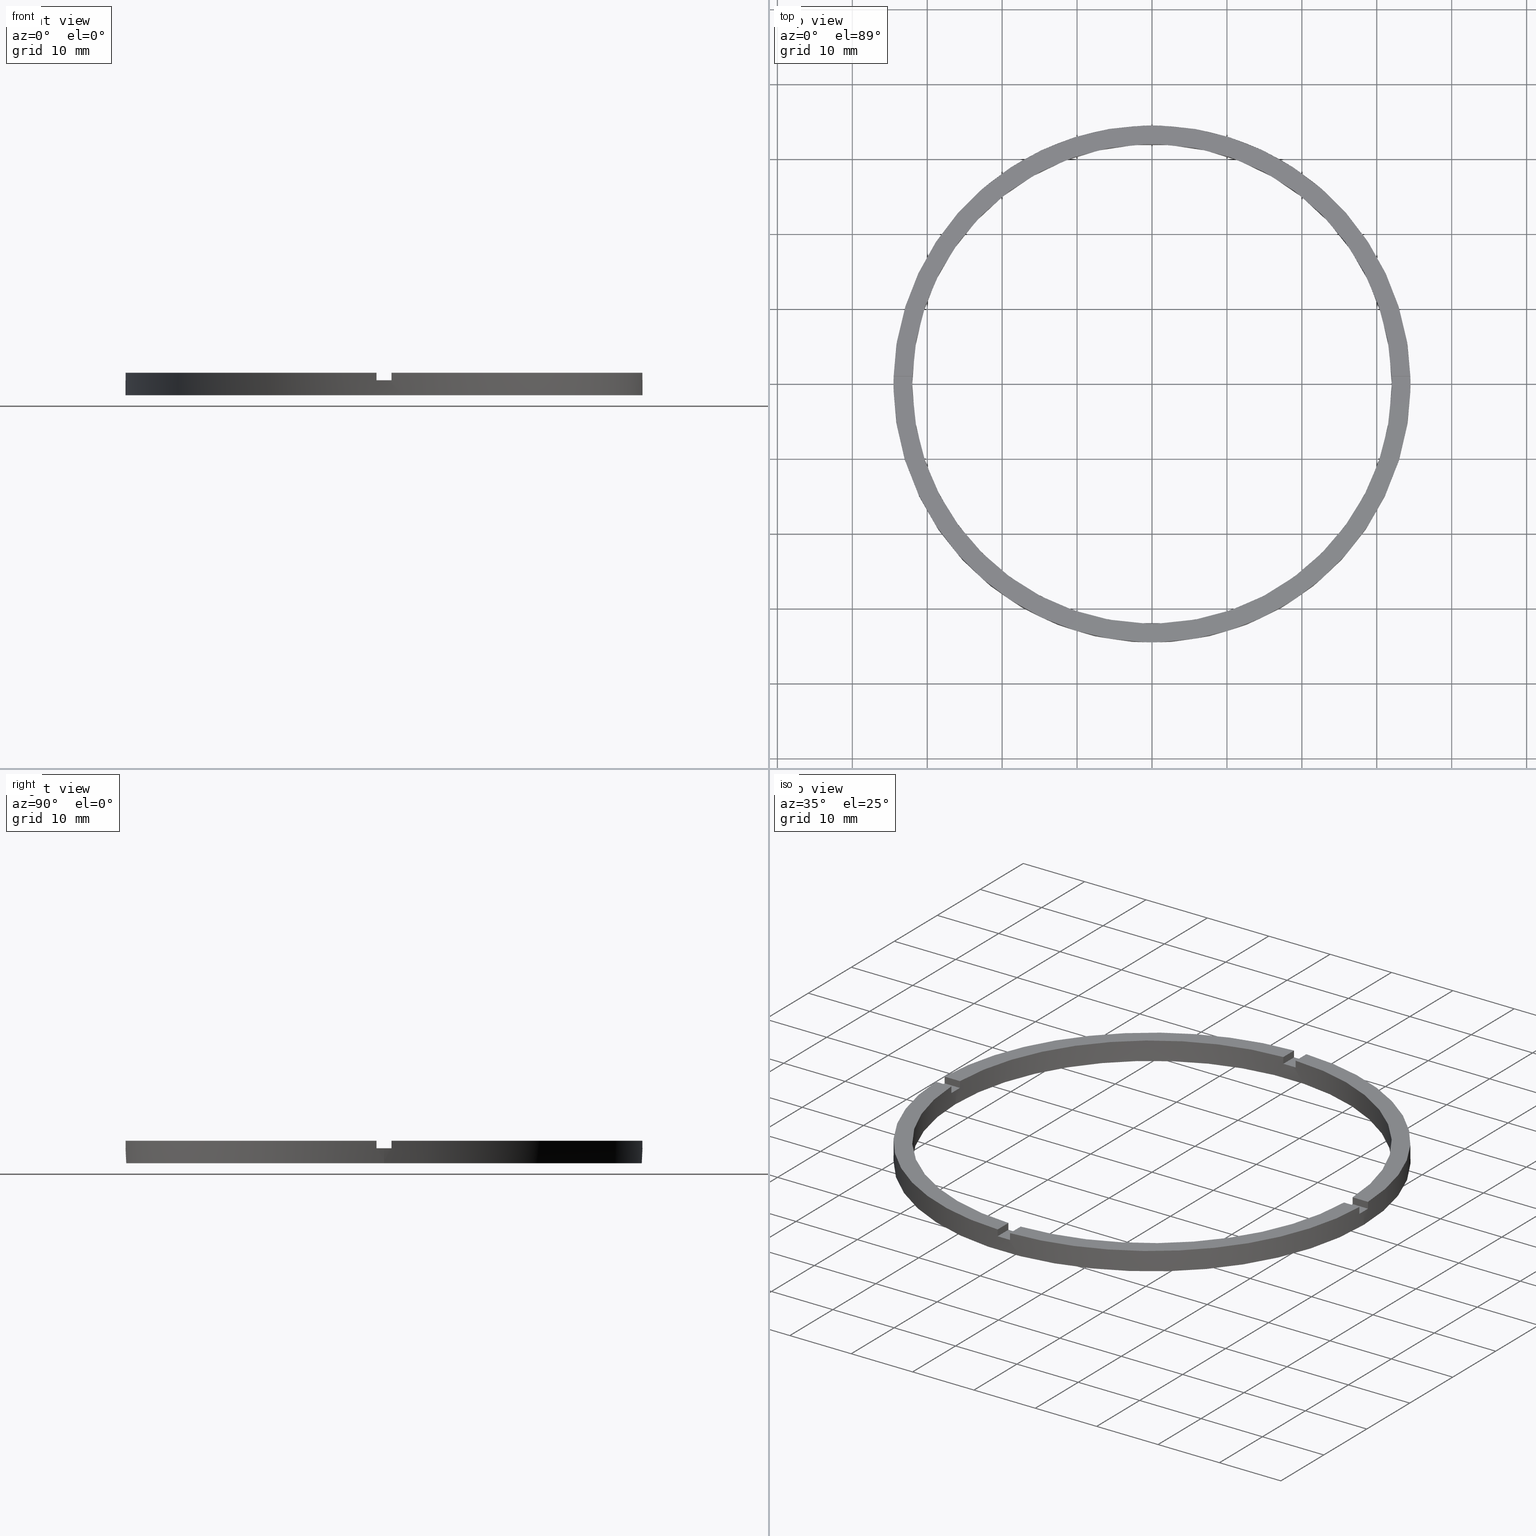
[diagram: canonical four-view strip — front | top / right | iso, engineering-drawing reading convention]
A machine part, canonical four-view strip (front | top / right | iso — engineering-drawing reading convention). The complete STEP part file that produces these views, byte-faithful:
ISO-10303-21;
HEADER;
FILE_DESCRIPTION (( 'STEP AP203' ),
    '1' );
FILE_NAME ('514142.step',
    '2024-12-26T02:41:35',
    ( 'MSI' ),
    ( '' ),
    'SwSTEP 2.0',
    'SolidWorks 2020',
    '' );
FILE_SCHEMA (( 'CONFIG_CONTROL_DESIGN' ));
ENDSEC;

DATA;
#1 = PLANE ( 'NONE',  #121 ) ;
#2 = CIRCLE ( 'NONE', #62, 34.49999999999999289 ) ;
#3 = CARTESIAN_POINT ( 'NONE',  ( 0.9999999999999751310, 31.98437118343894880, 3.000000000000000000 ) ) ;
#4 = LINE ( 'NONE', #3, #23 ) ;
#5 = CARTESIAN_POINT ( 'NONE',  ( -1.000000000000160760, -34.48550420104075442, 3.000000000000000000 ) ) ;
#6 = SECURITY_CLASSIFICATION ( '', '', #309 ) ;
#7 = CARTESIAN_POINT ( 'NONE',  ( 0.9999999999998380185, -24.50000000000017408, 2.000000000000000000 ) ) ;
#8 = VECTOR ( 'NONE', #444, 1000.000000000000000 ) ;
#9 = LINE ( 'NONE', #189, #264 ) ;
#10 = DIRECTION ( 'NONE',  ( 0.000000000000000000, 0.000000000000000000, 1.000000000000000000 ) ) ;
#11 = LINE ( 'NONE', #559, #274 ) ;
#12 = AXIS2_PLACEMENT_3D ( 'NONE', #453, #564, #317 ) ;
#13 = CARTESIAN_POINT ( 'NONE',  ( -1.000000000000160760, -34.48550420104075442, 2.000000000000000000 ) ) ;
#14 = EDGE_CURVE ( 'NONE', #660, #645, #215, .T. ) ;
#15 = FACE_OUTER_BOUND ( 'NONE', #465, .T. ) ;
#16 = EDGE_CURVE ( 'NONE', #63, #632, #490, .T. ) ;
#17 = LINE ( 'NONE', #386, #8 ) ;
#18 = EDGE_CURVE ( 'NONE', #376, #645, #235, .T. ) ;
#19 = DIRECTION ( 'NONE',  ( -0.000000000000000000, -0.000000000000000000, -1.000000000000000000 ) ) ;
#20 = CARTESIAN_POINT ( 'NONE',  ( -24.50000000000018119, -1.000000000000024647, 3.000000000000000000 ) ) ;
#21 = ADVANCED_FACE ( 'NONE', ( #478 ), #81, .T. ) ;
#22 = APPLICATION_PROTOCOL_DEFINITION ( 'international standard', 'config_control_design', 1994, #560 ) ;
#23 = VECTOR ( 'NONE', #371, 1000.000000000000000 ) ;
#24 = FACE_OUTER_BOUND ( 'NONE', #654, .T. ) ;
#25 = CARTESIAN_POINT ( 'NONE',  ( -31.98437118343894880, -1.000000000000026201, 3.000000000000000000 ) ) ;
#26 = LINE ( 'NONE', #729, #410 ) ;
#27 =( LENGTH_UNIT ( ) NAMED_UNIT ( * ) SI_UNIT ( .MILLI., .METRE. ) );
#28 = LINE ( 'NONE', #308, #286 ) ;
#29 = EDGE_CURVE ( 'NONE', #88, #430, #749, .T. ) ;
#30 = LINE ( 'NONE', #536, #32 ) ;
#31 = DIRECTION ( 'NONE',  ( 1.000000000000000000, 0.000000000000000000, 0.000000000000000000 ) ) ;
#32 = VECTOR ( 'NONE', #158, 1000.000000000000000 ) ;
#33 = CARTESIAN_POINT ( 'NONE',  ( -1.000000000000161204, -31.98437118343894170, 3.000000000000000000 ) ) ;
#34 = FACE_OUTER_BOUND ( 'NONE', #328, .T. ) ;
#35 = CIRCLE ( 'NONE', #525, 34.49999999999999289 ) ;
#36 = AXIS2_PLACEMENT_3D ( 'NONE', #295, #360, #118 ) ;
#37 = AXIS2_PLACEMENT_3D ( 'NONE', #439, #374, #245 ) ;
#38 = DIRECTION ( 'NONE',  ( 0.000000000000000000, 0.000000000000000000, 1.000000000000000000 ) ) ;
#39 = DIRECTION ( 'NONE',  ( -1.000000000000000000, -1.951563910473907735E-16, 0.000000000000000000 ) ) ;
#40 = PLANE ( 'NONE',  #205 ) ;
#41 = EDGE_LOOP ( 'NONE', ( #617, #335, #125, #153, #349, #385 ) ) ;
#42 = CARTESIAN_POINT ( 'NONE',  ( -1.000000000000024869, 34.48550420104075442, 3.000000000000000000 ) ) ;
#43 = EDGE_CURVE ( 'NONE', #752, #628, #219, .T. ) ;
#44 = APPROVAL ( #156, 'δָ��' ) ;
#45 = CARTESIAN_POINT ( 'NONE',  ( 0.000000000000000000, 0.000000000000000000, 3.000000000000000000 ) ) ;
#46 = CARTESIAN_POINT ( 'NONE',  ( 0.9999999999999751310, 24.49999999999999289, 2.000000000000000000 ) ) ;
#47 = CARTESIAN_POINT ( 'NONE',  ( 0.000000000000000000, 0.000000000000000000, 3.000000000000000000 ) ) ;
#48 = EDGE_CURVE ( 'NONE', #84, #381, #486, .T. ) ;
#49 = CARTESIAN_POINT ( 'NONE',  ( 24.49999999999998579, -1.000000000000158762, 2.000000000000000000 ) ) ;
#50 = PERSON_AND_ORGANIZATION_ROLE ( 'creator' ) ;
#51 = EDGE_CURVE ( 'NONE', #605, #144, #485, .T. ) ;
#52 = DIRECTION ( 'NONE',  ( -1.000000000000000000, -1.301042606982605074E-16, 0.000000000000000000 ) ) ;
#53 = CARTESIAN_POINT ( 'NONE',  ( -1.000000000000024869, 24.49999999999999289, 3.000000000000000000 ) ) ;
#54 = CARTESIAN_POINT ( 'NONE',  ( 0.000000000000000000, 0.000000000000000000, 2.000000000000000000 ) ) ;
#55 = ORIENTED_EDGE ( 'NONE', *, *, #714, .T. ) ;
#56 = DIRECTION ( 'NONE',  ( 0.000000000000000000, 0.000000000000000000, 1.000000000000000000 ) ) ;
#57 = ORIENTED_EDGE ( 'NONE', *, *, #330, .F. ) ;
#58 = CARTESIAN_POINT ( 'NONE',  ( 0.9999999999999751310, 31.98437118343894880, 3.000000000000000000 ) ) ;
#59 = EDGE_LOOP ( 'NONE', ( #615, #662, #576, #598, #592, #432, #411, #344, #357, #625, #636, #577 ) ) ;
#60 = AXIS2_PLACEMENT_3D ( 'NONE', #764, #570, #222 ) ;
#61 = DIRECTION ( 'NONE',  ( 1.000000000000000000, 0.000000000000000000, 0.000000000000000000 ) ) ;
#62 = AXIS2_PLACEMENT_3D ( 'NONE', #136, #437, #542 ) ;
#63 = VERTEX_POINT ( 'NONE', #243 ) ;
#64 = VERTEX_POINT ( 'NONE', #678 ) ;
#65 = EDGE_CURVE ( 'NONE', #473, #645, #475, .T. ) ;
#66 = EDGE_LOOP ( 'NONE', ( #93, #123, #355, #220, #484, #574, #760, #635, #626, #238, #467, #142 ) ) ;
#67 = PLANE ( 'NONE',  #352 ) ;
#68 = ORIENTED_EDGE ( 'NONE', *, *, #709, .T. ) ;
#69 = VERTEX_POINT ( 'NONE', #479 ) ;
#70 = ORIENTED_EDGE ( 'NONE', *, *, #291, .F. ) ;
#71 = ORIENTED_EDGE ( 'NONE', *, *, #307, .T. ) ;
#72 = DIRECTION ( 'NONE',  ( -0.000000000000000000, -0.000000000000000000, -1.000000000000000000 ) ) ;
#73 = VERTEX_POINT ( 'NONE', #717 ) ;
#74 = AXIS2_PLACEMENT_3D ( 'NONE', #555, #165, #239 ) ;
#75 = CARTESIAN_POINT ( 'NONE',  ( -1.000000000000024869, 34.48550420104075442, 2.000000000000000000 ) ) ;
#76 = MECHANICAL_CONTEXT ( 'NONE', #560, 'mechanical' ) ;
#77 = ORIENTED_EDGE ( 'NONE', *, *, #83, .T. ) ;
#78 = PERSON_AND_ORGANIZATION ( #111, #686 ) ;
#79 = EDGE_CURVE ( 'NONE', #331, #628, #209, .T. ) ;
#80 = ORIENTED_EDGE ( 'NONE', *, *, #79, .F. ) ;
#81 = PLANE ( 'NONE',  #452 ) ;
#82 = ADVANCED_FACE ( 'NONE', ( #493 ), #498, .F. ) ;
#83 = EDGE_CURVE ( 'NONE', #652, #756, #214, .T. ) ;
#84 = VERTEX_POINT ( 'NONE', #426 ) ;
#85 = PRODUCT ( '514142', '514142', '', ( #76 ) ) ;
#86 = PLANE ( 'NONE',  #684 ) ;
#87 = CALENDAR_DATE ( 2024, 26, 12 ) ;
#88 = VERTEX_POINT ( 'NONE', #522 ) ;
#89 = DIRECTION ( 'NONE',  ( 1.000000000000000000, 0.000000000000000000, -0.000000000000000000 ) ) ;
#90 = VERTEX_POINT ( 'NONE', #278 ) ;
#91 = ORIENTED_EDGE ( 'NONE', *, *, #563, .T. ) ;
#92 = APPROVAL_DATE_TIME ( #608, #459 ) ;
#93 = ORIENTED_EDGE ( 'NONE', *, *, #715, .T. ) ;
#94 = CARTESIAN_POINT ( 'NONE',  ( 0.000000000000000000, 0.000000000000000000, 3.000000000000000000 ) ) ;
#95 = DATE_AND_TIME ( #112, #109 ) ;
#96 = ORIENTED_EDGE ( 'NONE', *, *, #445, .F. ) ;
#97 = DATE_AND_TIME ( #87, #604 ) ;
#98 = EDGE_LOOP ( 'NONE', ( #738, #324, #113, #234 ) ) ;
#99 = PERSON_AND_ORGANIZATION ( #111, #686 ) ;
#100 = ORIENTED_EDGE ( 'NONE', *, *, #419, .F. ) ;
#101 = DIRECTION ( 'NONE',  ( 0.000000000000000000, 0.000000000000000000, 1.000000000000000000 ) ) ;
#102 = EDGE_LOOP ( 'NONE', ( #304, #673, #70, #572 ) ) ;
#103 = DATE_AND_TIME ( #353, #616 ) ;
#104 = MANIFOLD_SOLID_BREP ( '�г�-����1', #413 ) ;
#105 = ORIENTED_EDGE ( 'NONE', *, *, #666, .T. ) ;
#106 = PERSON_AND_ORGANIZATION ( #111, #686 ) ;
#107 = ORIENTED_EDGE ( 'NONE', *, *, #132, .T. ) ;
#108 = ORIENTED_EDGE ( 'NONE', *, *, #330, .T. ) ;
#109 = LOCAL_TIME ( 10, 41, 35.00000000000000000, #622 ) ;
#110 = DIRECTION ( 'NONE',  ( 0.000000000000000000, 0.000000000000000000, 1.000000000000000000 ) ) ;
#111 = PERSON ( 'δָ��', 'δָ��', 'δָ��', ('δָ��'), ('δָ��'), ('δָ��') ) ;
#112 = CALENDAR_DATE ( 2024, 26, 12 ) ;
#113 = ORIENTED_EDGE ( 'NONE', *, *, #132, .F. ) ;
#114 = VERTEX_POINT ( 'NONE', #457 ) ;
#115 = ORIENTED_EDGE ( 'NONE', *, *, #406, .T. ) ;
#116 = VERTEX_POINT ( 'NONE', #216 ) ;
#117 = DIRECTION ( 'NONE',  ( -1.301042606982605074E-16, 1.000000000000000000, -0.000000000000000000 ) ) ;
#118 = DIRECTION ( 'NONE',  ( -1.000000000000000000, -1.951563910473907735E-16, 0.000000000000000000 ) ) ;
#119 = APPROVAL_DATE_TIME ( #610, #568 ) ;
#120 = ORIENTED_EDGE ( 'NONE', *, *, #578, .F. ) ;
#121 = AXIS2_PLACEMENT_3D ( 'NONE', #149, #687, #483 ) ;
#122 = AXIS2_PLACEMENT_3D ( 'NONE', #690, #442, #154 ) ;
#123 = ORIENTED_EDGE ( 'NONE', *, *, #553, .T. ) ;
#124 = VERTEX_POINT ( 'NONE', #573 ) ;
#125 = ORIENTED_EDGE ( 'NONE', *, *, #466, .T. ) ;
#126 = ORIENTED_EDGE ( 'NONE', *, *, #513, .F. ) ;
#127 = EDGE_LOOP ( 'NONE', ( #182, #587, #208, #392 ) ) ;
#128 = CARTESIAN_POINT ( 'NONE',  ( 0.000000000000000000, 0.000000000000000000, 0.000000000000000000 ) ) ;
#129 = DIRECTION ( 'NONE',  ( 1.000000000000000000, 0.000000000000000000, 0.000000000000000000 ) ) ;
#130 = PERSON_AND_ORGANIZATION_ROLE ( 'design_supplier' ) ;
#131 = CARTESIAN_POINT ( 'NONE',  ( 34.49999999999999289, 4.225031457058367344E-15, 3.000000000000000000 ) ) ;
#132 = EDGE_CURVE ( 'NONE', #161, #473, #751, .T. ) ;
#133 = AXIS2_PLACEMENT_3D ( 'NONE', #631, #329, #373 ) ;
#134 = DIRECTION ( 'NONE',  ( 0.000000000000000000, 0.000000000000000000, 1.000000000000000000 ) ) ;
#135 = APPROVAL_ROLE ( '' ) ;
#136 = CARTESIAN_POINT ( 'NONE',  ( 0.000000000000000000, 0.000000000000000000, 2.000000000000000000 ) ) ;
#137 = CIRCLE ( 'NONE', #758, 32.00000000000000000 ) ;
#138 = CARTESIAN_POINT ( 'NONE',  ( -1.000000000000024869, 34.48550420104075442, 3.000000000000000000 ) ) ;
#139 = EDGE_LOOP ( 'NONE', ( #720, #580, #68, #474, #126, #463, #120, #346, #743, #727, #482, #342 ) ) ;
#140 = DIRECTION ( 'NONE',  ( 0.000000000000000000, -0.000000000000000000, 1.000000000000000000 ) ) ;
#141 = DIRECTION ( 'NONE',  ( -0.000000000000000000, -0.000000000000000000, -1.000000000000000000 ) ) ;
#142 = ORIENTED_EDGE ( 'NONE', *, *, #321, .F. ) ;
#143 = CARTESIAN_POINT ( 'NONE',  ( 0.000000000000000000, 0.000000000000000000, 2.000000000000000000 ) ) ;
#144 = VERTEX_POINT ( 'NONE', #519 ) ;
#145 = CYLINDRICAL_SURFACE ( 'NONE', #643, 34.49999999999999289 ) ;
#146 = DIRECTION ( 'NONE',  ( -0.000000000000000000, -0.000000000000000000, -1.000000000000000000 ) ) ;
#147 = CIRCLE ( 'NONE', #74, 32.00000000000000000 ) ;
#148 = EDGE_CURVE ( 'NONE', #377, #114, #224, .T. ) ;
#149 = CARTESIAN_POINT ( 'NONE',  ( 0.000000000000000000, 0.000000000000000000, 2.000000000000000000 ) ) ;
#150 = PERSON_AND_ORGANIZATION_ROLE ( 'classification_officer' ) ;
#151 = ORIENTED_EDGE ( 'NONE', *, *, #298, .T. ) ;
#152 = ORIENTED_EDGE ( 'NONE', *, *, #79, .T. ) ;
#153 = ORIENTED_EDGE ( 'NONE', *, *, #318, .F. ) ;
#154 = DIRECTION ( 'NONE',  ( 1.000000000000000000, 0.000000000000000000, 0.000000000000000000 ) ) ;
#155 = ORIENTED_EDGE ( 'NONE', *, *, #620, .F. ) ;
#156 = APPROVAL_STATUS ( 'not_yet_approved' ) ;
#157 = ORIENTED_EDGE ( 'NONE', *, *, #14, .F. ) ;
#158 = DIRECTION ( 'NONE',  ( 0.000000000000000000, 0.000000000000000000, 1.000000000000000000 ) ) ;
#159 = CIRCLE ( 'NONE', #12, 34.49999999999999289 ) ;
#160 = ADVANCED_FACE ( 'NONE', ( #230 ), #40, .T. ) ;
#161 = VERTEX_POINT ( 'NONE', #772 ) ;
#162 = CARTESIAN_POINT ( 'NONE',  ( -1.000000000000162093, -24.50000000000017408, 2.000000000000000000 ) ) ;
#163 =( NAMED_UNIT ( * ) PLANE_ANGLE_UNIT ( ) SI_UNIT ( $, .RADIAN. ) );
#164 = VECTOR ( 'NONE', #716, 1000.000000000000000 ) ;
#165 = DIRECTION ( 'NONE',  ( 0.000000000000000000, 0.000000000000000000, 1.000000000000000000 ) ) ;
#166 = ADVANCED_FACE ( 'NONE', ( #228 ), #658, .F. ) ;
#167 = EDGE_LOOP ( 'NONE', ( #682, #422, #600, #557 ) ) ;
#168 = CC_DESIGN_APPROVAL ( #459, ( #6 ) ) ;
#169 = EDGE_CURVE ( 'NONE', #381, #84, #487, .T. ) ;
#170 = CARTESIAN_POINT ( 'NONE',  ( 0.000000000000000000, 0.000000000000000000, 3.000000000000000000 ) ) ;
#171 = DIRECTION ( 'NONE',  ( -0.000000000000000000, 0.000000000000000000, 1.000000000000000000 ) ) ;
#172 = PERSON_AND_ORGANIZATION ( #111, #686 ) ;
#173 = EDGE_LOOP ( 'NONE', ( #337, #650, #436, #420 ) ) ;
#174 = ORIENTED_EDGE ( 'NONE', *, *, #29, .T. ) ;
#175 = ORIENTED_EDGE ( 'NONE', *, *, #261, .T. ) ;
#176 = DIRECTION ( 'NONE',  ( 1.000000000000000000, 0.000000000000000000, 0.000000000000000000 ) ) ;
#177 = CARTESIAN_POINT ( 'NONE',  ( 0.000000000000000000, 0.000000000000000000, 2.000000000000000000 ) ) ;
#178 = AXIS2_PLACEMENT_3D ( 'NONE', #323, #202, #263 ) ;
#179 = DIRECTION ( 'NONE',  ( 0.000000000000000000, 1.000000000000000000, 0.000000000000000000 ) ) ;
#180 = EDGE_CURVE ( 'NONE', #732, #752, #218, .T. ) ;
#181 = AXIS2_PLACEMENT_3D ( 'NONE', #646, #267, #637 ) ;
#182 = ORIENTED_EDGE ( 'NONE', *, *, #719, .T. ) ;
#183 = DIRECTION ( 'NONE',  ( -0.000000000000000000, -0.000000000000000000, -1.000000000000000000 ) ) ;
#184 = AXIS2_PLACEMENT_3D ( 'NONE', #470, #297, #575 ) ;
#185 = DIRECTION ( 'NONE',  ( 1.000000000000000000, 0.000000000000000000, -0.000000000000000000 ) ) ;
#186 = PLANE ( 'NONE',  #248 ) ;
#187 = APPROVAL_STATUS ( 'not_yet_approved' ) ;
#188 = CARTESIAN_POINT ( 'NONE',  ( 34.48550420104075442, -1.000000000000158096, 2.000000000000000000 ) ) ;
#189 = CARTESIAN_POINT ( 'NONE',  ( -34.48550420104075442, -1.000000000000026645, 3.000000000000000000 ) ) ;
#190 = CC_DESIGN_APPROVAL ( #44, ( #408 ) ) ;
#191 = EDGE_CURVE ( 'NONE', #116, #380, #730, .T. ) ;
#192 = ADVANCED_BREP_SHAPE_REPRESENTATION ( '514142', ( #104, #194 ), #327 ) ;
#193 = CARTESIAN_POINT ( 'NONE',  ( 0.000000000000000000, 0.000000000000000000, 3.000000000000000000 ) ) ;
#194 = AXIS2_PLACEMENT_3D ( 'NONE', #266, #692, #449 ) ;
#195 = DIRECTION ( 'NONE',  ( -1.301042606982605074E-16, 1.000000000000000000, 0.000000000000000000 ) ) ;
#196 = AXIS2_PLACEMENT_3D ( 'NONE', #704, #316, #599 ) ;
#197 = DIRECTION ( 'NONE',  ( 0.000000000000000000, 0.000000000000000000, 1.000000000000000000 ) ) ;
#198 = EDGE_CURVE ( 'NONE', #73, #116, #237, .T. ) ;
#199 = CARTESIAN_POINT ( 'NONE',  ( 0.000000000000000000, 0.000000000000000000, 3.000000000000000000 ) ) ;
#200 = APPLICATION_PROTOCOL_DEFINITION ( 'international standard', 'config_control_design', 1994, #742 ) ;
#201 = ADVANCED_FACE ( 'NONE', ( #460 ), #292, .F. ) ;
#202 = DIRECTION ( 'NONE',  ( -1.000000000000000000, 0.000000000000000000, 0.000000000000000000 ) ) ;
#203 = ADVANCED_FACE ( 'NONE', ( #724 ), #712, .T. ) ;
#204 = PLANE ( 'NONE',  #178 ) ;
#205 = AXIS2_PLACEMENT_3D ( 'NONE', #431, #110, #185 ) ;
#206 = VECTOR ( 'NONE', #418, 1000.000000000000000 ) ;
#207 = AXIS2_PLACEMENT_3D ( 'NONE', #679, #499, #249 ) ;
#208 = ORIENTED_EDGE ( 'NONE', *, *, #191, .F. ) ;
#209 = LINE ( 'NONE', #5, #757 ) ;
#210 = CARTESIAN_POINT ( 'NONE',  ( 0.9999999999998380185, -24.50000000000017408, 2.000000000000000000 ) ) ;
#211 = CARTESIAN_POINT ( 'NONE',  ( 0.000000000000000000, 0.000000000000000000, 2.000000000000000000 ) ) ;
#212 = CIRCLE ( 'NONE', #584, 34.49999999999999289 ) ;
#213 = VECTOR ( 'NONE', #117, 1000.000000000000000 ) ;
#214 = CIRCLE ( 'NONE', #707, 34.49999999999999289 ) ;
#215 = CIRCLE ( 'NONE', #181, 32.00000000000000000 ) ;
#216 = CARTESIAN_POINT ( 'NONE',  ( 34.48550420104076153, 0.9999999999998419042, 2.000000000000000000 ) ) ;
#217 = CARTESIAN_POINT ( 'NONE',  ( -31.98437118343894880, -1.000000000000026201, 2.000000000000000000 ) ) ;
#218 = CIRCLE ( 'NONE', #351, 32.00000000000000000 ) ;
#219 = LINE ( 'NONE', #402, #226 ) ;
#220 = ORIENTED_EDGE ( 'NONE', *, *, #569, .F. ) ;
#221 = VECTOR ( 'NONE', #759, 1000.000000000000000 ) ;
#222 = DIRECTION ( 'NONE',  ( 1.000000000000000000, 0.000000000000000000, 0.000000000000000000 ) ) ;
#223 = DIRECTION ( 'NONE',  ( 0.000000000000000000, 0.000000000000000000, 1.000000000000000000 ) ) ;
#224 = CIRCLE ( 'NONE', #60, 34.49999999999999289 ) ;
#225 = VERTEX_POINT ( 'NONE', #217 ) ;
#226 = VECTOR ( 'NONE', #701, 1000.000000000000000 ) ;
#227 = DIRECTION ( 'NONE',  ( -1.000000000000000000, -6.505213034913025371E-17, -0.000000000000000000 ) ) ;
#228 = FACE_OUTER_BOUND ( 'NONE', #613, .T. ) ;
#229 = CARTESIAN_POINT ( 'NONE',  ( 0.9999999999998389066, -31.98437118343895591, 3.000000000000000000 ) ) ;
#230 = FACE_OUTER_BOUND ( 'NONE', #389, .T. ) ;
#231 = EDGE_CURVE ( 'NONE', #594, #628, #212, .T. ) ;
#232 = VECTOR ( 'NONE', #227, 1000.000000000000000 ) ;
#233 = EDGE_CURVE ( 'NONE', #590, #407, #725, .T. ) ;
#234 = ORIENTED_EDGE ( 'NONE', *, *, #768, .T. ) ;
#235 = LINE ( 'NONE', #210, #221 ) ;
#236 = CARTESIAN_POINT ( 'NONE',  ( 0.9999999999998393507, -34.48550420104076153, 2.000000000000000000 ) ) ;
#237 = LINE ( 'NONE', #705, #206 ) ;
#238 = ORIENTED_EDGE ( 'NONE', *, *, #65, .F. ) ;
#239 = DIRECTION ( 'NONE',  ( 1.000000000000000000, 0.000000000000000000, 0.000000000000000000 ) ) ;
#240 = CYLINDRICAL_SURFACE ( 'NONE', #744, 32.00000000000000000 ) ;
#241 = CARTESIAN_POINT ( 'NONE',  ( 0.000000000000000000, 0.000000000000000000, 2.000000000000000000 ) ) ;
#242 = LINE ( 'NONE', #285, #503 ) ;
#243 = CARTESIAN_POINT ( 'NONE',  ( 31.98437118343895591, 0.9999999999998419042, 3.000000000000000000 ) ) ;
#244 = VECTOR ( 'NONE', #663, 1000.000000000000000 ) ;
#245 = DIRECTION ( 'NONE',  ( 1.000000000000000000, 0.000000000000000000, 0.000000000000000000 ) ) ;
#246 = CARTESIAN_POINT ( 'NONE',  ( 31.98437118343894170, -1.000000000000158096, 3.000000000000000000 ) ) ;
#247 = DIRECTION ( 'NONE',  ( 1.000000000000000000, 0.000000000000000000, 0.000000000000000000 ) ) ;
#248 = AXIS2_PLACEMENT_3D ( 'NONE', #265, #397, #451 ) ;
#249 = DIRECTION ( 'NONE',  ( -1.000000000000000000, 0.000000000000000000, 0.000000000000000000 ) ) ;
#250 = EDGE_CURVE ( 'NONE', #607, #407, #736, .T. ) ;
#251 = CARTESIAN_POINT ( 'NONE',  ( -31.98437118343894880, 0.9999999999999737987, 3.000000000000000000 ) ) ;
#252 = VECTOR ( 'NONE', #529, 1000.000000000000000 ) ;
#253 = VECTOR ( 'NONE', #294, 1000.000000000000000 ) ;
#254 = CARTESIAN_POINT ( 'NONE',  ( 24.49999999999998579, -1.000000000000158762, 3.000000000000000000 ) ) ;
#255 = FACE_OUTER_BOUND ( 'NONE', #398, .T. ) ;
#256 = CIRCLE ( 'NONE', #726, 32.00000000000000000 ) ;
#257 = VECTOR ( 'NONE', #696, 1000.000000000000000 ) ;
#258 = CARTESIAN_POINT ( 'NONE',  ( -34.48550420104076153, 0.9999999999999733546, 3.000000000000000000 ) ) ;
#259 = EDGE_CURVE ( 'NONE', #333, #64, #242, .T. ) ;
#260 = APPROVAL_STATUS ( 'not_yet_approved' ) ;
#261 = EDGE_CURVE ( 'NONE', #377, #88, #766, .T. ) ;
#262 = LINE ( 'NONE', #364, #520 ) ;
#263 = DIRECTION ( 'NONE',  ( 0.000000000000000000, 0.000000000000000000, 1.000000000000000000 ) ) ;
#264 = VECTOR ( 'NONE', #141, 1000.000000000000000 ) ;
#265 = CARTESIAN_POINT ( 'NONE',  ( 0.000000000000000000, 0.000000000000000000, 3.000000000000000000 ) ) ;
#266 = CARTESIAN_POINT ( 'NONE',  ( 0.000000000000000000, 0.000000000000000000, 0.000000000000000000 ) ) ;
#267 = DIRECTION ( 'NONE',  ( -0.000000000000000000, 0.000000000000000000, 1.000000000000000000 ) ) ;
#268 = DIRECTION ( 'NONE',  ( 0.000000000000000000, 0.000000000000000000, 1.000000000000000000 ) ) ;
#269 = VECTOR ( 'NONE', #773, 1000.000000000000000 ) ;
#270 = LINE ( 'NONE', #49, #780 ) ;
#271 = ADVANCED_FACE ( 'NONE', ( #496 ), #240, .F. ) ;
#272 = DESIGN_CONTEXT ( 'detailed design', #742, 'design' ) ;
#273 = FACE_OUTER_BOUND ( 'NONE', #167, .T. ) ;
#274 = VECTOR ( 'NONE', #629, 1000.000000000000000 ) ;
#275 = DIRECTION ( 'NONE',  ( 1.000000000000000000, 0.000000000000000000, 0.000000000000000000 ) ) ;
#276 = AXIS2_PLACEMENT_3D ( 'NONE', #211, #765, #279 ) ;
#277 = VECTOR ( 'NONE', #390, 1000.000000000000000 ) ;
#278 = CARTESIAN_POINT ( 'NONE',  ( -1.000000000000024869, 31.98437118343894880, 3.000000000000000000 ) ) ;
#279 = DIRECTION ( 'NONE',  ( 1.000000000000000000, 0.000000000000000000, 0.000000000000000000 ) ) ;
#280 = CYLINDRICAL_SURFACE ( 'NONE', #207, 34.49999999999999289 ) ;
#281 = FACE_OUTER_BOUND ( 'NONE', #139, .T. ) ;
#282 = LINE ( 'NONE', #254, #543 ) ;
#283 = LINE ( 'NONE', #566, #547 ) ;
#284 = DIRECTION ( 'NONE',  ( 0.000000000000000000, 0.000000000000000000, 1.000000000000000000 ) ) ;
#285 = CARTESIAN_POINT ( 'NONE',  ( -24.50000000000018119, 0.9999999999999753530, 3.000000000000000000 ) ) ;
#286 = VECTOR ( 'NONE', #146, 1000.000000000000000 ) ;
#287 = CIRCLE ( 'NONE', #122, 34.49999999999999289 ) ;
#288 = VECTOR ( 'NONE', #10, 1000.000000000000000 ) ;
#289 = CC_DESIGN_SECURITY_CLASSIFICATION ( #6, ( #408 ) ) ;
#290 = LINE ( 'NONE', #25, #551 ) ;
#291 = EDGE_CURVE ( 'NONE', #747, #477, #761, .T. ) ;
#292 = PLANE ( 'NONE',  #36 ) ;
#293 = LINE ( 'NONE', #325, #552 ) ;
#294 = DIRECTION ( 'NONE',  ( -0.000000000000000000, -0.000000000000000000, -1.000000000000000000 ) ) ;
#295 = CARTESIAN_POINT ( 'NONE',  ( -24.50000000000018119, 0.9999999999999753530, 2.000000000000000000 ) ) ;
#296 = AXIS2_PLACEMENT_3D ( 'NONE', #94, #508, #748 ) ;
#297 = DIRECTION ( 'NONE',  ( 0.000000000000000000, 0.000000000000000000, 1.000000000000000000 ) ) ;
#298 = EDGE_CURVE ( 'NONE', #607, #90, #497, .T. ) ;
#299 = AXIS2_PLACEMENT_3D ( 'NONE', #561, #746, #31 ) ;
#300 = ORIENTED_EDGE ( 'NONE', *, *, #372, .T. ) ;
#301 = CARTESIAN_POINT ( 'NONE',  ( -34.48550420104075442, -1.000000000000026645, 3.000000000000000000 ) ) ;
#302 = EDGE_LOOP ( 'NONE', ( #462, #401 ) ) ;
#303 = CARTESIAN_POINT ( 'NONE',  ( 0.9999999999998389066, -31.98437118343895591, 3.000000000000000000 ) ) ;
#304 = ORIENTED_EDGE ( 'NONE', *, *, #233, .T. ) ;
#305 = DIRECTION ( 'NONE',  ( 1.000000000000000000, 1.301042606982605074E-16, 0.000000000000000000 ) ) ;
#306 = DIRECTION ( 'NONE',  ( 1.000000000000000000, 6.505213034913025371E-17, 0.000000000000000000 ) ) ;
#307 = EDGE_CURVE ( 'NONE', #605, #333, #531, .T. ) ;
#308 = CARTESIAN_POINT ( 'NONE',  ( -32.00000000000000000, 0.000000000000000000, 3.000000000000000000 ) ) ;
#309 = SECURITY_CLASSIFICATION_LEVEL ( 'unclassified' ) ;
#310 = AXIS2_PLACEMENT_3D ( 'NONE', #46, #775, #700 ) ;
#311 = DIRECTION ( 'NONE',  ( -0.000000000000000000, -0.000000000000000000, -1.000000000000000000 ) ) ;
#312 = CARTESIAN_POINT ( 'NONE',  ( 0.000000000000000000, 0.000000000000000000, 2.000000000000000000 ) ) ;
#313 = DIRECTION ( 'NONE',  ( 1.000000000000000000, 6.505213034913025371E-17, 0.000000000000000000 ) ) ;
#314 = ADVANCED_FACE ( 'NONE', ( #524 ), #1, .T. ) ;
#315 = CARTESIAN_POINT ( 'NONE',  ( 0.000000000000000000, 0.000000000000000000, 2.000000000000000000 ) ) ;
#316 = DIRECTION ( 'NONE',  ( 0.000000000000000000, 0.000000000000000000, 1.000000000000000000 ) ) ;
#317 = DIRECTION ( 'NONE',  ( 1.000000000000000000, 0.000000000000000000, 0.000000000000000000 ) ) ;
#318 = EDGE_CURVE ( 'NONE', #722, #225, #256, .T. ) ;
#319 = CC_DESIGN_PERSON_AND_ORGANIZATION_ASSIGNMENT ( #78, #130, ( #408 ) ) ;
#320 = EDGE_LOOP ( 'NONE', ( #603, #653, #157, #665 ) ) ;
#321 = EDGE_CURVE ( 'NONE', #124, #338, #511, .T. ) ;
#322 = ORIENTED_EDGE ( 'NONE', *, *, #481, .F. ) ;
#323 = CARTESIAN_POINT ( 'NONE',  ( -1.000000000000024869, 24.49999999999999289, 2.000000000000000000 ) ) ;
#324 = ORIENTED_EDGE ( 'NONE', *, *, #468, .F. ) ;
#325 = CARTESIAN_POINT ( 'NONE',  ( 0.9999999999999751310, 24.49999999999999289, 3.000000000000000000 ) ) ;
#326 = ORIENTED_EDGE ( 'NONE', *, *, #259, .F. ) ;
#327 =( GEOMETRIC_REPRESENTATION_CONTEXT ( 3 ) GLOBAL_UNCERTAINTY_ASSIGNED_CONTEXT ( ( #530 ) ) GLOBAL_UNIT_ASSIGNED_CONTEXT ( ( #27, #163, #733 ) ) REPRESENTATION_CONTEXT ( 'NONE', 'WORKASPACE' ) );
#328 = EDGE_LOOP ( 'NONE', ( #414, #649, #409, #80 ) ) ;
#329 = DIRECTION ( 'NONE',  ( 0.000000000000000000, 0.000000000000000000, 1.000000000000000000 ) ) ;
#330 = EDGE_CURVE ( 'NONE', #594, #114, #9, .T. ) ;
#331 = VERTEX_POINT ( 'NONE', #13 ) ;
#332 = EDGE_LOOP ( 'NONE', ( #655, #425 ) ) ;
#333 = VERTEX_POINT ( 'NONE', #476 ) ;
#334 = CARTESIAN_POINT ( 'NONE',  ( 0.9999999999998380185, -24.50000000000017408, 3.000000000000000000 ) ) ;
#335 = ORIENTED_EDGE ( 'NONE', *, *, #148, .T. ) ;
#336 = LOCAL_TIME ( 10, 41, 35.00000000000000000, #348 ) ;
#337 = ORIENTED_EDGE ( 'NONE', *, *, #372, .F. ) ;
#338 = VERTEX_POINT ( 'NONE', #246 ) ;
#339 = ORIENTED_EDGE ( 'NONE', *, *, #657, .T. ) ;
#340 = DIRECTION ( 'NONE',  ( 1.000000000000000000, 6.505213034913025371E-17, 0.000000000000000000 ) ) ;
#341 = CARTESIAN_POINT ( 'NONE',  ( 0.000000000000000000, 0.000000000000000000, 3.000000000000000000 ) ) ;
#342 = ORIENTED_EDGE ( 'NONE', *, *, #198, .T. ) ;
#343 = ORIENTED_EDGE ( 'NONE', *, *, #715, .F. ) ;
#344 = ORIENTED_EDGE ( 'NONE', *, *, #762, .T. ) ;
#345 = SHAPE_DEFINITION_REPRESENTATION ( #567, #192 ) ;
#346 = ORIENTED_EDGE ( 'NONE', *, *, #250, .T. ) ;
#347 = DIRECTION ( 'NONE',  ( 1.000000000000000000, 0.000000000000000000, 0.000000000000000000 ) ) ;
#348 = COORDINATED_UNIVERSAL_TIME_OFFSET ( 8, 0, .AHEAD. ) ;
#349 = ORIENTED_EDGE ( 'NONE', *, *, #375, .F. ) ;
#350 = PLANE ( 'NONE',  #488 ) ;
#351 = AXIS2_PLACEMENT_3D ( 'NONE', #47, #223, #527 ) ;
#352 = AXIS2_PLACEMENT_3D ( 'NONE', #602, #52, #721 ) ;
#353 = CALENDAR_DATE ( 2024, 26, 12 ) ;
#354 = APPROVAL_DATE_TIME ( #95, #44 ) ;
#355 = ORIENTED_EDGE ( 'NONE', *, *, #48, .F. ) ;
#356 = PERSON_AND_ORGANIZATION ( #111, #686 ) ;
#357 = ORIENTED_EDGE ( 'NONE', *, *, #307, .F. ) ;
#358 = PERSON_AND_ORGANIZATION ( #111, #686 ) ;
#359 = ORIENTED_EDGE ( 'NONE', *, *, #148, .F. ) ;
#360 = DIRECTION ( 'NONE',  ( -1.951563910473907735E-16, 1.000000000000000000, 0.000000000000000000 ) ) ;
#361 = APPROVAL_PERSON_ORGANIZATION ( #99, #459, #614 ) ;
#362 = CARTESIAN_POINT ( 'NONE',  ( -34.49999999999999289, 0.000000000000000000, 2.000000000000000000 ) ) ;
#363 = ORIENTED_EDGE ( 'NONE', *, *, #65, .T. ) ;
#364 = CARTESIAN_POINT ( 'NONE',  ( 0.9999999999999751310, 24.49999999999999289, 2.000000000000000000 ) ) ;
#365 = APPROVAL_PERSON_ORGANIZATION ( #106, #44, #135 ) ;
#366 = ORIENTED_EDGE ( 'NONE', *, *, #18, .F. ) ;
#367 = DIRECTION ( 'NONE',  ( 1.000000000000000000, 0.000000000000000000, 0.000000000000000000 ) ) ;
#368 = ORIENTED_EDGE ( 'NONE', *, *, #298, .F. ) ;
#369 = AXIS2_PLACEMENT_3D ( 'NONE', #435, #541, #556 ) ;
#370 = PLANE ( 'NONE',  #369 ) ;
#371 = DIRECTION ( 'NONE',  ( 0.000000000000000000, 0.000000000000000000, 1.000000000000000000 ) ) ;
#372 = EDGE_CURVE ( 'NONE', #124, #652, #270, .T. ) ;
#373 = DIRECTION ( 'NONE',  ( 1.000000000000000000, 0.000000000000000000, 0.000000000000000000 ) ) ;
#374 = DIRECTION ( 'NONE',  ( 0.000000000000000000, 0.000000000000000000, 1.000000000000000000 ) ) ;
#375 = EDGE_CURVE ( 'NONE', #605, #722, #535, .T. ) ;
#376 = VERTEX_POINT ( 'NONE', #236 ) ;
#377 = VERTEX_POINT ( 'NONE', #362 ) ;
#378 = ORIENTED_EDGE ( 'NONE', *, *, #703, .F. ) ;
#379 = CARTESIAN_POINT ( 'NONE',  ( 0.9999999999998389066, -31.98437118343895591, 2.000000000000000000 ) ) ;
#380 = VERTEX_POINT ( 'NONE', #434 ) ;
#381 = VERTEX_POINT ( 'NONE', #534 ) ;
#382 = COORDINATED_UNIVERSAL_TIME_OFFSET ( 8, 0, .AHEAD. ) ;
#383 = ORIENTED_EDGE ( 'NONE', *, *, #762, .F. ) ;
#384 = CARTESIAN_POINT ( 'NONE',  ( 31.98437118343895591, 0.9999999999998419042, 3.000000000000000000 ) ) ;
#385 = ORIENTED_EDGE ( 'NONE', *, *, #51, .T. ) ;
#386 = CARTESIAN_POINT ( 'NONE',  ( 0.9999999999999751310, 34.48550420104076153, 3.000000000000000000 ) ) ;
#387 = DATE_TIME_ROLE ( 'classification_date' ) ;
#388 = ADVANCED_FACE ( 'NONE', ( #15 ), #370, .T. ) ;
#389 = EDGE_LOOP ( 'NONE', ( #77, #619, #589, #322, #343, #300 ) ) ;
#390 = DIRECTION ( 'NONE',  ( 0.000000000000000000, 0.000000000000000000, 1.000000000000000000 ) ) ;
#391 = ORIENTED_EDGE ( 'NONE', *, *, #466, .F. ) ;
#392 = ORIENTED_EDGE ( 'NONE', *, *, #198, .F. ) ;
#393 = CARTESIAN_POINT ( 'NONE',  ( 0.000000000000000000, 0.000000000000000000, 0.000000000000000000 ) ) ;
#394 = PERSON_AND_ORGANIZATION_ROLE ( 'design_owner' ) ;
#395 = EDGE_LOOP ( 'NONE', ( #471, #734, #91, #399, #755, #96, #152, #427, #108, #359, #175, #174 ) ) ;
#396 = ADVANCED_FACE ( 'NONE', ( #776, #782 ), #691, .F. ) ;
#397 = DIRECTION ( 'NONE',  ( 0.000000000000000000, 0.000000000000000000, 1.000000000000000000 ) ) ;
#398 = EDGE_LOOP ( 'NONE', ( #609, #741, #677, #582 ) ) ;
#399 = ORIENTED_EDGE ( 'NONE', *, *, #768, .F. ) ;
#400 = AXIS2_PLACEMENT_3D ( 'NONE', #634, #171, #404 ) ;
#401 = ORIENTED_EDGE ( 'NONE', *, *, #709, .F. ) ;
#402 = CARTESIAN_POINT ( 'NONE',  ( -1.000000000000162093, -24.50000000000017408, 3.000000000000000000 ) ) ;
#403 = DIRECTION ( 'NONE',  ( 1.000000000000000000, 0.000000000000000000, 0.000000000000000000 ) ) ;
#404 = DIRECTION ( 'NONE',  ( 1.000000000000000000, 0.000000000000000000, 0.000000000000000000 ) ) ;
#405 = ORIENTED_EDGE ( 'NONE', *, *, #51, .F. ) ;
#406 = EDGE_CURVE ( 'NONE', #594, #732, #516, .T. ) ;
#407 = VERTEX_POINT ( 'NONE', #75 ) ;
#408 = PRODUCT_DEFINITION_FORMATION_WITH_SPECIFIED_SOURCE ( '�κ�', '', #85, .NOT_KNOWN. ) ;
#409 = ORIENTED_EDGE ( 'NONE', *, *, #43, .T. ) ;
#410 = VECTOR ( 'NONE', #311, 1000.000000000000000 ) ;
#411 = ORIENTED_EDGE ( 'NONE', *, *, #714, .F. ) ;
#412 = LINE ( 'NONE', #480, #164 ) ;
#413 = CLOSED_SHELL ( 'NONE', ( #271, #670, #388, #495, #203, #507, #396, #711, #739, #166, #201, #314, #680, #621, #21, #505, #82, #160, #728, #447, #779 ) ) ;
#414 = ORIENTED_EDGE ( 'NONE', *, *, #423, .F. ) ;
#415 = PRODUCT_DEFINITION ( 'δ֪', '', #408, #272 ) ;
#416 = CIRCLE ( 'NONE', #37, 34.49999999999999289 ) ;
#417 = CARTESIAN_POINT ( 'NONE',  ( 0.000000000000000000, 0.000000000000000000, 2.000000000000000000 ) ) ;
#418 = DIRECTION ( 'NONE',  ( -0.000000000000000000, -0.000000000000000000, -1.000000000000000000 ) ) ;
#419 = EDGE_CURVE ( 'NONE', #407, #477, #11, .T. ) ;
#420 = ORIENTED_EDGE ( 'NONE', *, *, #563, .F. ) ;
#421 = CYLINDRICAL_SURFACE ( 'NONE', #296, 32.00000000000000000 ) ;
#422 = ORIENTED_EDGE ( 'NONE', *, *, #514, .T. ) ;
#423 = EDGE_CURVE ( 'NONE', #660, #331, #533, .T. ) ;
#424 = VERTEX_POINT ( 'NONE', #494 ) ;
#425 = ORIENTED_EDGE ( 'NONE', *, *, #169, .T. ) ;
#426 = CARTESIAN_POINT ( 'NONE',  ( -32.00000000000000000, 0.000000000000000000, 0.000000000000000000 ) ) ;
#427 = ORIENTED_EDGE ( 'NONE', *, *, #231, .F. ) ;
#428 = DIRECTION ( 'NONE',  ( 0.000000000000000000, 1.000000000000000000, 0.000000000000000000 ) ) ;
#429 = COORDINATED_UNIVERSAL_TIME_OFFSET ( 8, 0, .AHEAD. ) ;
#430 = VERTEX_POINT ( 'NONE', #740 ) ;
#431 = CARTESIAN_POINT ( 'NONE',  ( 0.000000000000000000, 0.000000000000000000, 2.000000000000000000 ) ) ;
#432 = ORIENTED_EDGE ( 'NONE', *, *, #291, .T. ) ;
#433 = DIRECTION ( 'NONE',  ( -6.505213034913025371E-17, 1.000000000000000000, 0.000000000000000000 ) ) ;
#434 = CARTESIAN_POINT ( 'NONE',  ( 31.98437118343895591, 0.9999999999998419042, 2.000000000000000000 ) ) ;
#435 = CARTESIAN_POINT ( 'NONE',  ( 0.000000000000000000, 0.000000000000000000, 3.000000000000000000 ) ) ;
#436 = ORIENTED_EDGE ( 'NONE', *, *, #695, .T. ) ;
#437 = DIRECTION ( 'NONE',  ( 0.000000000000000000, 0.000000000000000000, 1.000000000000000000 ) ) ;
#438 = DIRECTION ( 'NONE',  ( -0.000000000000000000, -0.000000000000000000, -1.000000000000000000 ) ) ;
#439 = CARTESIAN_POINT ( 'NONE',  ( 0.000000000000000000, 0.000000000000000000, 0.000000000000000000 ) ) ;
#440 = AXIS2_PLACEMENT_3D ( 'NONE', #565, #640, #702 ) ;
#441 = EDGE_CURVE ( 'NONE', #590, #69, #17, .T. ) ;
#442 = DIRECTION ( 'NONE',  ( 0.000000000000000000, 0.000000000000000000, 1.000000000000000000 ) ) ;
#443 = CARTESIAN_POINT ( 'NONE',  ( -31.98437118343894880, 0.9999999999999737987, 2.000000000000000000 ) ) ;
#444 = DIRECTION ( 'NONE',  ( 0.000000000000000000, 0.000000000000000000, 1.000000000000000000 ) ) ;
#445 = EDGE_CURVE ( 'NONE', #331, #376, #526, .T. ) ;
#446 = CARTESIAN_POINT ( 'NONE',  ( -1.000000000000024869, 31.98437118343894880, 3.000000000000000000 ) ) ;
#447 = ADVANCED_FACE ( 'NONE', ( #273 ), #581, .F. ) ;
#448 = DIRECTION ( 'NONE',  ( 1.000000000000000000, 0.000000000000000000, -0.000000000000000000 ) ) ;
#449 = DIRECTION ( 'NONE',  ( 1.000000000000000000, 0.000000000000000000, 0.000000000000000000 ) ) ;
#450 = PLANE ( 'NONE',  #713 ) ;
#451 = DIRECTION ( 'NONE',  ( 1.000000000000000000, 0.000000000000000000, -0.000000000000000000 ) ) ;
#452 = AXIS2_PLACEMENT_3D ( 'NONE', #312, #735, #275 ) ;
#453 = CARTESIAN_POINT ( 'NONE',  ( 0.000000000000000000, 0.000000000000000000, 3.000000000000000000 ) ) ;
#454 = AXIS2_PLACEMENT_3D ( 'NONE', #128, #586, #176 ) ;
#455 = DIRECTION ( 'NONE',  ( 1.000000000000000000, 0.000000000000000000, 0.000000000000000000 ) ) ;
#456 = CARTESIAN_POINT ( 'NONE',  ( 24.49999999999998579, 0.9999999999998412381, 2.000000000000000000 ) ) ;
#457 = CARTESIAN_POINT ( 'NONE',  ( -34.48550420104075442, -1.000000000000026645, 2.000000000000000000 ) ) ;
#458 = DIRECTION ( 'NONE',  ( 1.000000000000000000, 0.000000000000000000, 0.000000000000000000 ) ) ;
#459 = APPROVAL ( #187, 'δָ��' ) ;
#460 = FACE_OUTER_BOUND ( 'NONE', #583, .T. ) ;
#461 = CARTESIAN_POINT ( 'NONE',  ( -34.49999999999999289, 0.000000000000000000, 3.000000000000000000 ) ) ;
#462 = ORIENTED_EDGE ( 'NONE', *, *, #29, .F. ) ;
#463 = ORIENTED_EDGE ( 'NONE', *, *, #620, .T. ) ;
#464 = CC_DESIGN_PERSON_AND_ORGANIZATION_ASSIGNMENT ( #681, #394, ( #85 ) ) ;
#465 = EDGE_LOOP ( 'NONE', ( #368, #612, #326, #383 ) ) ;
#466 = EDGE_CURVE ( 'NONE', #114, #225, #770, .T. ) ;
#467 = ORIENTED_EDGE ( 'NONE', *, *, #468, .T. ) ;
#468 = EDGE_CURVE ( 'NONE', #473, #338, #517, .T. ) ;
#469 = DATE_TIME_ROLE ( 'creation_date' ) ;
#470 = CARTESIAN_POINT ( 'NONE',  ( 0.000000000000000000, 0.000000000000000000, 3.000000000000000000 ) ) ;
#471 = ORIENTED_EDGE ( 'NONE', *, *, #504, .F. ) ;
#472 = EDGE_CURVE ( 'NONE', #747, #590, #262, .T. ) ;
#473 = VERTEX_POINT ( 'NONE', #229 ) ;
#474 = ORIENTED_EDGE ( 'NONE', *, *, #261, .F. ) ;
#475 = LINE ( 'NONE', #303, #489 ) ;
#476 = CARTESIAN_POINT ( 'NONE',  ( -31.98437118343894880, 0.9999999999999737987, 3.000000000000000000 ) ) ;
#477 = VERTEX_POINT ( 'NONE', #754 ) ;
#478 = FACE_OUTER_BOUND ( 'NONE', #320, .T. ) ;
#479 = CARTESIAN_POINT ( 'NONE',  ( 0.9999999999999751310, 34.48550420104076153, 3.000000000000000000 ) ) ;
#480 = CARTESIAN_POINT ( 'NONE',  ( 24.49999999999998579, 0.9999999999998412381, 3.000000000000000000 ) ) ;
#481 = EDGE_CURVE ( 'NONE', #424, #380, #771, .T. ) ;
#482 = ORIENTED_EDGE ( 'NONE', *, *, #657, .F. ) ;
#483 = DIRECTION ( 'NONE',  ( 1.000000000000000000, 0.000000000000000000, -0.000000000000000000 ) ) ;
#484 = ORIENTED_EDGE ( 'NONE', *, *, #318, .T. ) ;
#485 = LINE ( 'NONE', #698, #491 ) ;
#486 = CIRCLE ( 'NONE', #133, 32.00000000000000000 ) ;
#487 = CIRCLE ( 'NONE', #454, 32.00000000000000000 ) ;
#488 = AXIS2_PLACEMENT_3D ( 'NONE', #769, #433, #588 ) ;
#489 = VECTOR ( 'NONE', #438, 1000.000000000000000 ) ;
#490 = CIRCLE ( 'NONE', #196, 32.00000000000000000 ) ;
#491 = VECTOR ( 'NONE', #39, 1000.000000000000000 ) ;
#492 = DIRECTION ( 'NONE',  ( -0.000000000000000000, -0.000000000000000000, -1.000000000000000000 ) ) ;
#493 = FACE_OUTER_BOUND ( 'NONE', #173, .T. ) ;
#494 = CARTESIAN_POINT ( 'NONE',  ( 32.00000000000000000, 3.918869757271530263E-15, 2.000000000000000000 ) ) ;
#495 = ADVANCED_FACE ( 'NONE', ( #521 ), #667, .T. ) ;
#496 = FACE_OUTER_BOUND ( 'NONE', #66, .T. ) ;
#497 = LINE ( 'NONE', #53, #244 ) ;
#498 = PLANE ( 'NONE',  #623 ) ;
#499 = DIRECTION ( 'NONE',  ( -0.000000000000000000, -0.000000000000000000, -1.000000000000000000 ) ) ;
#500 = VECTOR ( 'NONE', #767, 1000.000000000000000 ) ;
#501 = AXIS2_PLACEMENT_3D ( 'NONE', #393, #731, #448 ) ;
#502 = DIRECTION ( 'NONE',  ( 1.000000000000000000, 1.951563910473907735E-16, -0.000000000000000000 ) ) ;
#503 = VECTOR ( 'NONE', #515, 1000.000000000000000 ) ;
#504 = EDGE_CURVE ( 'NONE', #756, #430, #774, .T. ) ;
#505 = ADVANCED_FACE ( 'NONE', ( #512 ), #350, .F. ) ;
#506 = CC_DESIGN_DATE_AND_TIME_ASSIGNMENT ( #103, #469, ( #415 ) ) ;
#507 = ADVANCED_FACE ( 'NONE', ( #255 ), #186, .T. ) ;
#508 = DIRECTION ( 'NONE',  ( -0.000000000000000000, -0.000000000000000000, -1.000000000000000000 ) ) ;
#509 = CARTESIAN_POINT ( 'NONE',  ( -24.50000000000018119, -1.000000000000024647, 2.000000000000000000 ) ) ;
#510 = CC_DESIGN_PERSON_AND_ORGANIZATION_ASSIGNMENT ( #638, #549, ( #415 ) ) ;
#511 = LINE ( 'NONE', #723, #269 ) ;
#512 = FACE_OUTER_BOUND ( 'NONE', #127, .T. ) ;
#513 = EDGE_CURVE ( 'NONE', #144, #377, #2, .T. ) ;
#514 = EDGE_CURVE ( 'NONE', #747, #632, #4, .T. ) ;
#515 = DIRECTION ( 'NONE',  ( -1.000000000000000000, -1.951563910473907735E-16, 0.000000000000000000 ) ) ;
#516 = LINE ( 'NONE', #20, #777 ) ;
#517 = CIRCLE ( 'NONE', #440, 32.00000000000000000 ) ;
#518 = VECTOR ( 'NONE', #528, 1000.000000000000000 ) ;
#519 = CARTESIAN_POINT ( 'NONE',  ( -34.48550420104076153, 0.9999999999999733546, 2.000000000000000000 ) ) ;
#520 = VECTOR ( 'NONE', #428, 1000.000000000000000 ) ;
#521 = FACE_OUTER_BOUND ( 'NONE', #639, .T. ) ;
#522 = CARTESIAN_POINT ( 'NONE',  ( -34.49999999999999289, 0.000000000000000000, 0.000000000000000000 ) ) ;
#523 = DIRECTION ( 'NONE',  ( 1.000000000000000000, 1.951563910473907735E-16, 0.000000000000000000 ) ) ;
#524 = FACE_OUTER_BOUND ( 'NONE', #41, .T. ) ;
#525 = AXIS2_PLACEMENT_3D ( 'NONE', #193, #591, #618 ) ;
#526 = CIRCLE ( 'NONE', #400, 34.49999999999999289 ) ;
#527 = DIRECTION ( 'NONE',  ( 1.000000000000000000, 0.000000000000000000, 0.000000000000000000 ) ) ;
#528 = DIRECTION ( 'NONE',  ( 0.000000000000000000, 0.000000000000000000, 1.000000000000000000 ) ) ;
#529 = DIRECTION ( 'NONE',  ( 1.000000000000000000, 1.951563910473907735E-16, -0.000000000000000000 ) ) ;
#530 = UNCERTAINTY_MEASURE_WITH_UNIT (LENGTH_MEASURE( 1.000000000000000082E-05 ), #27, 'distance_accuracy_value', 'NONE');
#531 = LINE ( 'NONE', #251, #518 ) ;
#532 = CARTESIAN_POINT ( 'NONE',  ( -24.50000000000018119, -1.000000000000024647, 2.000000000000000000 ) ) ;
#533 = LINE ( 'NONE', #162, #257 ) ;
#534 = CARTESIAN_POINT ( 'NONE',  ( 32.00000000000000000, 3.918869757271530263E-15, 0.000000000000000000 ) ) ;
#535 = CIRCLE ( 'NONE', #693, 32.00000000000000000 ) ;
#536 = CARTESIAN_POINT ( 'NONE',  ( -1.000000000000161204, -31.98437118343894170, 3.000000000000000000 ) ) ;
#537 = LINE ( 'NONE', #384, #540 ) ;
#538 = EDGE_CURVE ( 'NONE', #756, #116, #548, .T. ) ;
#539 = CARTESIAN_POINT ( 'NONE',  ( 0.000000000000000000, 0.000000000000000000, 2.000000000000000000 ) ) ;
#540 = VECTOR ( 'NONE', #492, 1000.000000000000000 ) ;
#541 = DIRECTION ( 'NONE',  ( 0.000000000000000000, 0.000000000000000000, 1.000000000000000000 ) ) ;
#542 = DIRECTION ( 'NONE',  ( 1.000000000000000000, 0.000000000000000000, 0.000000000000000000 ) ) ;
#543 = VECTOR ( 'NONE', #313, 1000.000000000000000 ) ;
#544 = EDGE_CURVE ( 'NONE', #632, #69, #293, .T. ) ;
#545 = LINE ( 'NONE', #558, #288 ) ;
#546 = CARTESIAN_POINT ( 'NONE',  ( -32.00000000000000000, 0.000000000000000000, 2.000000000000000000 ) ) ;
#547 = VECTOR ( 'NONE', #72, 1000.000000000000000 ) ;
#548 = CIRCLE ( 'NONE', #745, 34.49999999999999289 ) ;
#549 = PERSON_AND_ORGANIZATION_ROLE ( 'creator' ) ;
#550 = LINE ( 'NONE', #258, #277 ) ;
#551 = VECTOR ( 'NONE', #685, 1000.000000000000000 ) ;
#552 = VECTOR ( 'NONE', #179, 1000.000000000000000 ) ;
#553 = EDGE_CURVE ( 'NONE', #424, #381, #283, .T. ) ;
#554 = EDGE_CURVE ( 'NONE', #660, #752, #30, .T. ) ;
#555 = CARTESIAN_POINT ( 'NONE',  ( 0.000000000000000000, 0.000000000000000000, 2.000000000000000000 ) ) ;
#556 = DIRECTION ( 'NONE',  ( 1.000000000000000000, 0.000000000000000000, -0.000000000000000000 ) ) ;
#557 = ORIENTED_EDGE ( 'NONE', *, *, #441, .F. ) ;
#558 = CARTESIAN_POINT ( 'NONE',  ( 34.48550420104075442, -1.000000000000158096, 3.000000000000000000 ) ) ;
#559 = CARTESIAN_POINT ( 'NONE',  ( -1.000000000000024869, 24.49999999999999289, 2.000000000000000000 ) ) ;
#560 = APPLICATION_CONTEXT ( 'configuration controlled 3d designs of mechanical parts and assemblies' ) ;
#561 = CARTESIAN_POINT ( 'NONE',  ( 0.000000000000000000, 0.000000000000000000, 0.000000000000000000 ) ) ;
#562 = CARTESIAN_POINT ( 'NONE',  ( 0.9999999999999751310, 31.98437118343894880, 2.000000000000000000 ) ) ;
#563 = EDGE_CURVE ( 'NONE', #652, #641, #545, .T. ) ;
#564 = DIRECTION ( 'NONE',  ( 0.000000000000000000, 0.000000000000000000, 1.000000000000000000 ) ) ;
#565 = CARTESIAN_POINT ( 'NONE',  ( 0.000000000000000000, 0.000000000000000000, 3.000000000000000000 ) ) ;
#566 = CARTESIAN_POINT ( 'NONE',  ( 32.00000000000000000, 3.918869757271530263E-15, 3.000000000000000000 ) ) ;
#567 = PRODUCT_DEFINITION_SHAPE ( 'NONE', 'NONE',  #415 ) ;
#568 = APPROVAL ( #260, 'δָ��' ) ;
#569 = EDGE_CURVE ( 'NONE', #722, #84, #28, .T. ) ;
#570 = DIRECTION ( 'NONE',  ( 0.000000000000000000, 0.000000000000000000, 1.000000000000000000 ) ) ;
#571 = DIRECTION ( 'NONE',  ( 1.000000000000000000, 0.000000000000000000, -0.000000000000000000 ) ) ;
#572 = ORIENTED_EDGE ( 'NONE', *, *, #472, .T. ) ;
#573 = CARTESIAN_POINT ( 'NONE',  ( 31.98437118343894170, -1.000000000000158096, 2.000000000000000000 ) ) ;
#574 = ORIENTED_EDGE ( 'NONE', *, *, #666, .F. ) ;
#575 = DIRECTION ( 'NONE',  ( 1.000000000000000000, 0.000000000000000000, -0.000000000000000000 ) ) ;
#576 = ORIENTED_EDGE ( 'NONE', *, *, #676, .F. ) ;
#577 = ORIENTED_EDGE ( 'NONE', *, *, #169, .F. ) ;
#578 = EDGE_CURVE ( 'NONE', #607, #64, #287, .T. ) ;
#579 = EDGE_LOOP ( 'NONE', ( #151, #55, #100, #585 ) ) ;
#580 = ORIENTED_EDGE ( 'NONE', *, *, #504, .T. ) ;
#581 = PLANE ( 'NONE',  #310 ) ;
#582 = ORIENTED_EDGE ( 'NONE', *, *, #231, .T. ) ;
#583 = EDGE_LOOP ( 'NONE', ( #405, #71, #624, #155 ) ) ;
#584 = AXIS2_PLACEMENT_3D ( 'NONE', #706, #101, #347 ) ;
#585 = ORIENTED_EDGE ( 'NONE', *, *, #250, .F. ) ;
#586 = DIRECTION ( 'NONE',  ( 0.000000000000000000, 0.000000000000000000, 1.000000000000000000 ) ) ;
#587 = ORIENTED_EDGE ( 'NONE', *, *, #676, .T. ) ;
#588 = DIRECTION ( 'NONE',  ( -1.000000000000000000, -6.505213034913025371E-17, 0.000000000000000000 ) ) ;
#589 = ORIENTED_EDGE ( 'NONE', *, *, #191, .T. ) ;
#590 = VERTEX_POINT ( 'NONE', #611 ) ;
#591 = DIRECTION ( 'NONE',  ( 0.000000000000000000, 0.000000000000000000, 1.000000000000000000 ) ) ;
#592 = ORIENTED_EDGE ( 'NONE', *, *, #514, .F. ) ;
#593 = CALENDAR_DATE ( 2024, 26, 12 ) ;
#594 = VERTEX_POINT ( 'NONE', #301 ) ;
#595 = APPROVAL_ROLE ( '' ) ;
#596 = COORDINATED_UNIVERSAL_TIME_OFFSET ( 8, 0, .AHEAD. ) ;
#597 = DIRECTION ( 'NONE',  ( 0.000000000000000000, 0.000000000000000000, 1.000000000000000000 ) ) ;
#598 = ORIENTED_EDGE ( 'NONE', *, *, #16, .T. ) ;
#599 = DIRECTION ( 'NONE',  ( 1.000000000000000000, 0.000000000000000000, 0.000000000000000000 ) ) ;
#600 = ORIENTED_EDGE ( 'NONE', *, *, #544, .T. ) ;
#601 = AXIS2_PLACEMENT_3D ( 'NONE', #539, #140, #367 ) ;
#602 = CARTESIAN_POINT ( 'NONE',  ( -1.000000000000162093, -24.50000000000017408, 2.000000000000000000 ) ) ;
#603 = ORIENTED_EDGE ( 'NONE', *, *, #445, .T. ) ;
#604 = LOCAL_TIME ( 10, 41, 35.00000000000000000, #596 ) ;
#605 = VERTEX_POINT ( 'NONE', #443 ) ;
#606 = CC_DESIGN_DATE_AND_TIME_ASSIGNMENT ( #97, #387, ( #6 ) ) ;
#607 = VERTEX_POINT ( 'NONE', #138 ) ;
#608 = DATE_AND_TIME ( #593, #336 ) ;
#609 = ORIENTED_EDGE ( 'NONE', *, *, #43, .F. ) ;
#610 = DATE_AND_TIME ( #675, #689 ) ;
#611 = CARTESIAN_POINT ( 'NONE',  ( 0.9999999999999751310, 34.48550420104076153, 2.000000000000000000 ) ) ;
#612 = ORIENTED_EDGE ( 'NONE', *, *, #578, .T. ) ;
#613 = EDGE_LOOP ( 'NONE', ( #115, #105, #391, #57 ) ) ;
#614 = APPROVAL_ROLE ( '' ) ;
#615 = ORIENTED_EDGE ( 'NONE', *, *, #553, .F. ) ;
#616 = LOCAL_TIME ( 10, 41, 35.00000000000000000, #382 ) ;
#617 = ORIENTED_EDGE ( 'NONE', *, *, #513, .T. ) ;
#618 = DIRECTION ( 'NONE',  ( 1.000000000000000000, 0.000000000000000000, 0.000000000000000000 ) ) ;
#619 = ORIENTED_EDGE ( 'NONE', *, *, #538, .T. ) ;
#620 = EDGE_CURVE ( 'NONE', #144, #64, #550, .T. ) ;
#621 = ADVANCED_FACE ( 'NONE', ( #34 ), #67, .F. ) ;
#622 = COORDINATED_UNIVERSAL_TIME_OFFSET ( 8, 0, .AHEAD. ) ;
#623 = AXIS2_PLACEMENT_3D ( 'NONE', #627, #651, #340 ) ;
#624 = ORIENTED_EDGE ( 'NONE', *, *, #259, .T. ) ;
#625 = ORIENTED_EDGE ( 'NONE', *, *, #375, .T. ) ;
#626 = ORIENTED_EDGE ( 'NONE', *, *, #14, .T. ) ;
#627 = CARTESIAN_POINT ( 'NONE',  ( 24.49999999999998579, -1.000000000000158762, 2.000000000000000000 ) ) ;
#628 = VERTEX_POINT ( 'NONE', #737 ) ;
#629 = DIRECTION ( 'NONE',  ( -0.000000000000000000, -1.000000000000000000, -0.000000000000000000 ) ) ;
#630 = ORIENTED_EDGE ( 'NONE', *, *, #544, .F. ) ;
#631 = CARTESIAN_POINT ( 'NONE',  ( 0.000000000000000000, 0.000000000000000000, 0.000000000000000000 ) ) ;
#632 = VERTEX_POINT ( 'NONE', #58 ) ;
#633 = CARTESIAN_POINT ( 'NONE',  ( 34.49999999999999289, 4.225031457058367344E-15, 2.000000000000000000 ) ) ;
#634 = CARTESIAN_POINT ( 'NONE',  ( 0.000000000000000000, 0.000000000000000000, 2.000000000000000000 ) ) ;
#635 = ORIENTED_EDGE ( 'NONE', *, *, #554, .F. ) ;
#636 = ORIENTED_EDGE ( 'NONE', *, *, #569, .T. ) ;
#637 = DIRECTION ( 'NONE',  ( 1.000000000000000000, 0.000000000000000000, 0.000000000000000000 ) ) ;
#638 = PERSON_AND_ORGANIZATION ( #111, #686 ) ;
#639 = EDGE_LOOP ( 'NONE', ( #630, #753, #644, #339 ) ) ;
#640 = DIRECTION ( 'NONE',  ( 0.000000000000000000, 0.000000000000000000, 1.000000000000000000 ) ) ;
#641 = VERTEX_POINT ( 'NONE', #781 ) ;
#642 = AXIS2_PLACEMENT_3D ( 'NONE', #341, #38, #571 ) ;
#643 = AXIS2_PLACEMENT_3D ( 'NONE', #199, #19, #694 ) ;
#644 = ORIENTED_EDGE ( 'NONE', *, *, #719, .F. ) ;
#645 = VERTEX_POINT ( 'NONE', #379 ) ;
#646 = CARTESIAN_POINT ( 'NONE',  ( 0.000000000000000000, 0.000000000000000000, 2.000000000000000000 ) ) ;
#647 = DIRECTION ( 'NONE',  ( 1.951563910473907735E-16, -1.000000000000000000, 0.000000000000000000 ) ) ;
#648 = FACE_OUTER_BOUND ( 'NONE', #579, .T. ) ;
#649 = ORIENTED_EDGE ( 'NONE', *, *, #554, .T. ) ;
#650 = ORIENTED_EDGE ( 'NONE', *, *, #321, .T. ) ;
#651 = DIRECTION ( 'NONE',  ( 6.505213034913025371E-17, -1.000000000000000000, 0.000000000000000000 ) ) ;
#652 = VERTEX_POINT ( 'NONE', #188 ) ;
#653 = ORIENTED_EDGE ( 'NONE', *, *, #18, .T. ) ;
#654 = EDGE_LOOP ( 'NONE', ( #107, #363, #366, #378 ) ) ;
#655 = ORIENTED_EDGE ( 'NONE', *, *, #48, .T. ) ;
#656 = CC_DESIGN_PERSON_AND_ORGANIZATION_ASSIGNMENT ( #358, #50, ( #408 ) ) ;
#657 = EDGE_CURVE ( 'NONE', #73, #69, #35, .T. ) ;
#658 = PLANE ( 'NONE',  #683 ) ;
#659 = VECTOR ( 'NONE', #718, 1000.000000000000000 ) ;
#660 = VERTEX_POINT ( 'NONE', #672 ) ;
#661 = DIRECTION ( 'NONE',  ( -0.000000000000000000, -0.000000000000000000, -1.000000000000000000 ) ) ;
#662 = ORIENTED_EDGE ( 'NONE', *, *, #481, .T. ) ;
#663 = DIRECTION ( 'NONE',  ( -0.000000000000000000, -1.000000000000000000, -0.000000000000000000 ) ) ;
#664 = CC_DESIGN_APPROVAL ( #568, ( #415 ) ) ;
#665 = ORIENTED_EDGE ( 'NONE', *, *, #423, .T. ) ;
#666 = EDGE_CURVE ( 'NONE', #732, #225, #290, .T. ) ;
#667 = PLANE ( 'NONE',  #184 ) ;
#668 = FACE_OUTER_BOUND ( 'NONE', #395, .T. ) ;
#669 = FACE_OUTER_BOUND ( 'NONE', #102, .T. ) ;
#670 = ADVANCED_FACE ( 'NONE', ( #281 ), #280, .T. ) ;
#671 = FACE_OUTER_BOUND ( 'NONE', #59, .T. ) ;
#672 = CARTESIAN_POINT ( 'NONE',  ( -1.000000000000161204, -31.98437118343894170, 2.000000000000000000 ) ) ;
#673 = ORIENTED_EDGE ( 'NONE', *, *, #419, .T. ) ;
#674 = LINE ( 'NONE', #446, #659 ) ;
#675 = CALENDAR_DATE ( 2024, 26, 12 ) ;
#676 = EDGE_CURVE ( 'NONE', #63, #380, #537, .T. ) ;
#677 = ORIENTED_EDGE ( 'NONE', *, *, #406, .F. ) ;
#678 = CARTESIAN_POINT ( 'NONE',  ( -34.48550420104076153, 0.9999999999999733546, 3.000000000000000000 ) ) ;
#679 = CARTESIAN_POINT ( 'NONE',  ( 0.000000000000000000, 0.000000000000000000, 3.000000000000000000 ) ) ;
#680 = ADVANCED_FACE ( 'NONE', ( #24 ), #86, .F. ) ;
#681 = PERSON_AND_ORGANIZATION ( #111, #686 ) ;
#682 = ORIENTED_EDGE ( 'NONE', *, *, #472, .F. ) ;
#683 = AXIS2_PLACEMENT_3D ( 'NONE', #532, #647, #523 ) ;
#684 = AXIS2_PLACEMENT_3D ( 'NONE', #7, #305, #195 ) ;
#685 = DIRECTION ( 'NONE',  ( -0.000000000000000000, -0.000000000000000000, -1.000000000000000000 ) ) ;
#686 = ORGANIZATION ( 'δָ��', 'δָ��', '' ) ;
#687 = DIRECTION ( 'NONE',  ( 0.000000000000000000, 0.000000000000000000, 1.000000000000000000 ) ) ;
#688 = APPROVAL_PERSON_ORGANIZATION ( #172, #568, #595 ) ;
#689 = LOCAL_TIME ( 10, 41, 35.00000000000000000, #429 ) ;
#690 = CARTESIAN_POINT ( 'NONE',  ( 0.000000000000000000, 0.000000000000000000, 3.000000000000000000 ) ) ;
#691 = PLANE ( 'NONE',  #501 ) ;
#692 = DIRECTION ( 'NONE',  ( 0.000000000000000000, 0.000000000000000000, 1.000000000000000000 ) ) ;
#693 = AXIS2_PLACEMENT_3D ( 'NONE', #241, #197, #129 ) ;
#694 = DIRECTION ( 'NONE',  ( -1.000000000000000000, 0.000000000000000000, 0.000000000000000000 ) ) ;
#695 = EDGE_CURVE ( 'NONE', #338, #641, #282, .T. ) ;
#696 = DIRECTION ( 'NONE',  ( 1.301042606982605074E-16, -1.000000000000000000, 0.000000000000000000 ) ) ;
#697 = DIRECTION ( 'NONE',  ( 0.000000000000000000, -0.000000000000000000, 1.000000000000000000 ) ) ;
#698 = CARTESIAN_POINT ( 'NONE',  ( -24.50000000000018119, 0.9999999999999753530, 2.000000000000000000 ) ) ;
#699 = CARTESIAN_POINT ( 'NONE',  ( -31.98437118343894880, -1.000000000000026201, 3.000000000000000000 ) ) ;
#700 = DIRECTION ( 'NONE',  ( 0.000000000000000000, 0.000000000000000000, -1.000000000000000000 ) ) ;
#701 = DIRECTION ( 'NONE',  ( 1.301042606982605074E-16, -1.000000000000000000, 0.000000000000000000 ) ) ;
#702 = DIRECTION ( 'NONE',  ( 1.000000000000000000, 0.000000000000000000, 0.000000000000000000 ) ) ;
#703 = EDGE_CURVE ( 'NONE', #161, #376, #26, .T. ) ;
#704 = CARTESIAN_POINT ( 'NONE',  ( 0.000000000000000000, 0.000000000000000000, 3.000000000000000000 ) ) ;
#705 = CARTESIAN_POINT ( 'NONE',  ( 34.48550420104076153, 0.9999999999998419042, 3.000000000000000000 ) ) ;
#706 = CARTESIAN_POINT ( 'NONE',  ( 0.000000000000000000, 0.000000000000000000, 3.000000000000000000 ) ) ;
#707 = AXIS2_PLACEMENT_3D ( 'NONE', #417, #284, #455 ) ;
#708 = AXIS2_PLACEMENT_3D ( 'NONE', #177, #778, #458 ) ;
#709 = EDGE_CURVE ( 'NONE', #430, #88, #416, .T. ) ;
#710 = CC_DESIGN_PERSON_AND_ORGANIZATION_ASSIGNMENT ( #356, #150, ( #6 ) ) ;
#711 = ADVANCED_FACE ( 'NONE', ( #668 ), #145, .T. ) ;
#712 = PLANE ( 'NONE',  #642 ) ;
#713 = AXIS2_PLACEMENT_3D ( 'NONE', #315, #697, #89 ) ;
#714 = EDGE_CURVE ( 'NONE', #90, #477, #674, .T. ) ;
#715 = EDGE_CURVE ( 'NONE', #124, #424, #147, .T. ) ;
#716 = DIRECTION ( 'NONE',  ( -1.000000000000000000, -6.505213034913025371E-17, -0.000000000000000000 ) ) ;
#717 = CARTESIAN_POINT ( 'NONE',  ( 34.48550420104076153, 0.9999999999998419042, 3.000000000000000000 ) ) ;
#718 = DIRECTION ( 'NONE',  ( -0.000000000000000000, -0.000000000000000000, -1.000000000000000000 ) ) ;
#719 = EDGE_CURVE ( 'NONE', #73, #63, #412, .T. ) ;
#720 = ORIENTED_EDGE ( 'NONE', *, *, #538, .F. ) ;
#721 = DIRECTION ( 'NONE',  ( 1.301042606982605074E-16, -1.000000000000000000, 0.000000000000000000 ) ) ;
#722 = VERTEX_POINT ( 'NONE', #546 ) ;
#723 = CARTESIAN_POINT ( 'NONE',  ( 31.98437118343894170, -1.000000000000158096, 3.000000000000000000 ) ) ;
#724 = FACE_OUTER_BOUND ( 'NONE', #98, .T. ) ;
#725 = CIRCLE ( 'NONE', #276, 34.49999999999999289 ) ;
#726 = AXIS2_PLACEMENT_3D ( 'NONE', #54, #134, #61 ) ;
#727 = ORIENTED_EDGE ( 'NONE', *, *, #441, .T. ) ;
#728 = ADVANCED_FACE ( 'NONE', ( #648 ), #204, .F. ) ;
#729 = CARTESIAN_POINT ( 'NONE',  ( 0.9999999999998393507, -34.48550420104076153, 3.000000000000000000 ) ) ;
#730 = LINE ( 'NONE', #456, #232 ) ;
#731 = DIRECTION ( 'NONE',  ( 0.000000000000000000, 0.000000000000000000, 1.000000000000000000 ) ) ;
#732 = VERTEX_POINT ( 'NONE', #699 ) ;
#733 =( NAMED_UNIT ( * ) SI_UNIT ( $, .STERADIAN. ) SOLID_ANGLE_UNIT ( ) );
#734 = ORIENTED_EDGE ( 'NONE', *, *, #83, .F. ) ;
#735 = DIRECTION ( 'NONE',  ( -0.000000000000000000, 0.000000000000000000, 1.000000000000000000 ) ) ;
#736 = LINE ( 'NONE', #42, #763 ) ;
#737 = CARTESIAN_POINT ( 'NONE',  ( -1.000000000000160760, -34.48550420104075442, 3.000000000000000000 ) ) ;
#738 = ORIENTED_EDGE ( 'NONE', *, *, #695, .F. ) ;
#739 = ADVANCED_FACE ( 'NONE', ( #671 ), #421, .F. ) ;
#740 = CARTESIAN_POINT ( 'NONE',  ( 34.49999999999999289, 4.225031457058367344E-15, 0.000000000000000000 ) ) ;
#741 = ORIENTED_EDGE ( 'NONE', *, *, #180, .F. ) ;
#742 = APPLICATION_CONTEXT ( 'configuration controlled 3d designs of mechanical parts and assemblies' ) ;
#743 = ORIENTED_EDGE ( 'NONE', *, *, #233, .F. ) ;
#744 = AXIS2_PLACEMENT_3D ( 'NONE', #45, #661, #783 ) ;
#745 = AXIS2_PLACEMENT_3D ( 'NONE', #143, #597, #247 ) ;
#746 = DIRECTION ( 'NONE',  ( 0.000000000000000000, 0.000000000000000000, 1.000000000000000000 ) ) ;
#747 = VERTEX_POINT ( 'NONE', #562 ) ;
#748 = DIRECTION ( 'NONE',  ( -1.000000000000000000, 0.000000000000000000, 0.000000000000000000 ) ) ;
#749 = CIRCLE ( 'NONE', #299, 34.49999999999999289 ) ;
#750 = PRODUCT_RELATED_PRODUCT_CATEGORY ( 'detail', '', ( #85 ) ) ;
#751 = LINE ( 'NONE', #334, #213 ) ;
#752 = VERTEX_POINT ( 'NONE', #33 ) ;
#753 = ORIENTED_EDGE ( 'NONE', *, *, #16, .F. ) ;
#754 = CARTESIAN_POINT ( 'NONE',  ( -1.000000000000024869, 31.98437118343894880, 2.000000000000000000 ) ) ;
#755 = ORIENTED_EDGE ( 'NONE', *, *, #703, .T. ) ;
#756 = VERTEX_POINT ( 'NONE', #633 ) ;
#757 = VECTOR ( 'NONE', #56, 1000.000000000000000 ) ;
#758 = AXIS2_PLACEMENT_3D ( 'NONE', #170, #268, #403 ) ;
#759 = DIRECTION ( 'NONE',  ( -1.301042606982605074E-16, 1.000000000000000000, -0.000000000000000000 ) ) ;
#760 = ORIENTED_EDGE ( 'NONE', *, *, #180, .T. ) ;
#761 = CIRCLE ( 'NONE', #601, 32.00000000000000000 ) ;
#762 = EDGE_CURVE ( 'NONE', #90, #333, #137, .T. ) ;
#763 = VECTOR ( 'NONE', #183, 1000.000000000000000 ) ;
#764 = CARTESIAN_POINT ( 'NONE',  ( 0.000000000000000000, 0.000000000000000000, 2.000000000000000000 ) ) ;
#765 = DIRECTION ( 'NONE',  ( 0.000000000000000000, -0.000000000000000000, 1.000000000000000000 ) ) ;
#766 = LINE ( 'NONE', #461, #500 ) ;
#767 = DIRECTION ( 'NONE',  ( -0.000000000000000000, -0.000000000000000000, -1.000000000000000000 ) ) ;
#768 = EDGE_CURVE ( 'NONE', #161, #641, #159, .T. ) ;
#769 = CARTESIAN_POINT ( 'NONE',  ( 24.49999999999998579, 0.9999999999998412381, 2.000000000000000000 ) ) ;
#770 = LINE ( 'NONE', #509, #252 ) ;
#771 = CIRCLE ( 'NONE', #708, 32.00000000000000000 ) ;
#772 = CARTESIAN_POINT ( 'NONE',  ( 0.9999999999998393507, -34.48550420104076153, 3.000000000000000000 ) ) ;
#773 = DIRECTION ( 'NONE',  ( 0.000000000000000000, 0.000000000000000000, 1.000000000000000000 ) ) ;
#774 = LINE ( 'NONE', #131, #253 ) ;
#775 = DIRECTION ( 'NONE',  ( 1.000000000000000000, -0.000000000000000000, 0.000000000000000000 ) ) ;
#776 = FACE_OUTER_BOUND ( 'NONE', #302, .T. ) ;
#777 = VECTOR ( 'NONE', #502, 1000.000000000000000 ) ;
#778 = DIRECTION ( 'NONE',  ( 0.000000000000000000, 0.000000000000000000, 1.000000000000000000 ) ) ;
#779 = ADVANCED_FACE ( 'NONE', ( #669 ), #450, .T. ) ;
#780 = VECTOR ( 'NONE', #306, 1000.000000000000000 ) ;
#781 = CARTESIAN_POINT ( 'NONE',  ( 34.48550420104075442, -1.000000000000158096, 3.000000000000000000 ) ) ;
#782 = FACE_BOUND ( 'NONE', #332, .T. ) ;
#783 = DIRECTION ( 'NONE',  ( -1.000000000000000000, 0.000000000000000000, 0.000000000000000000 ) ) ;
ENDSEC;
END-ISO-10303-21;
